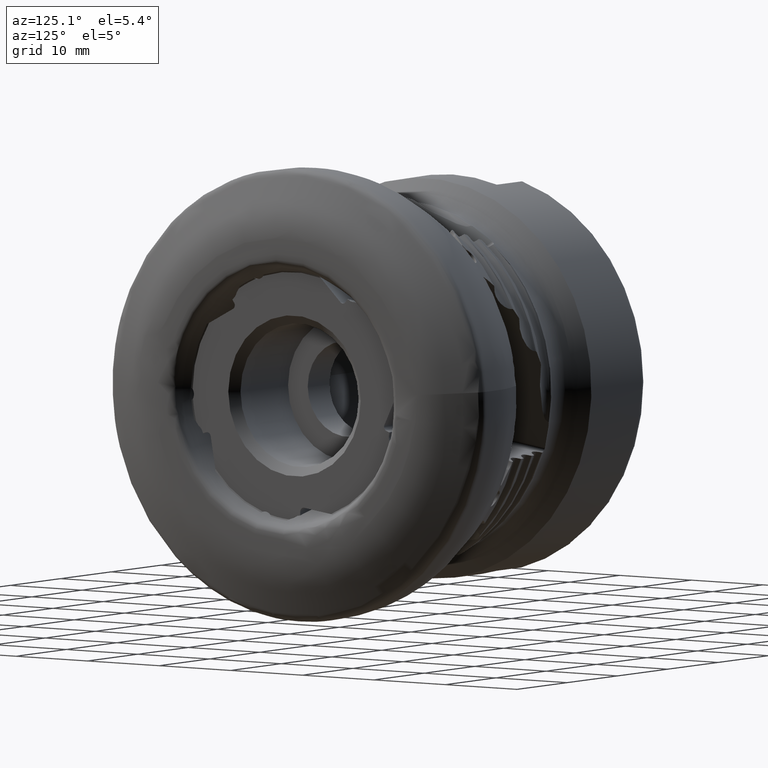
[diagram: clean part render]
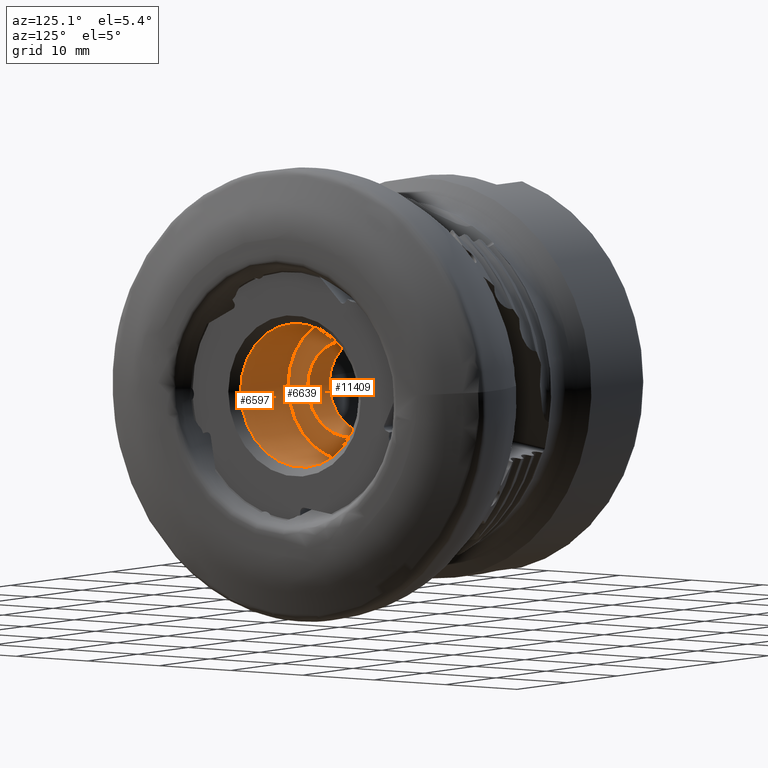
[diagram: same view with one multi-face feature highlighted, each face labeled with its STEP entity id]
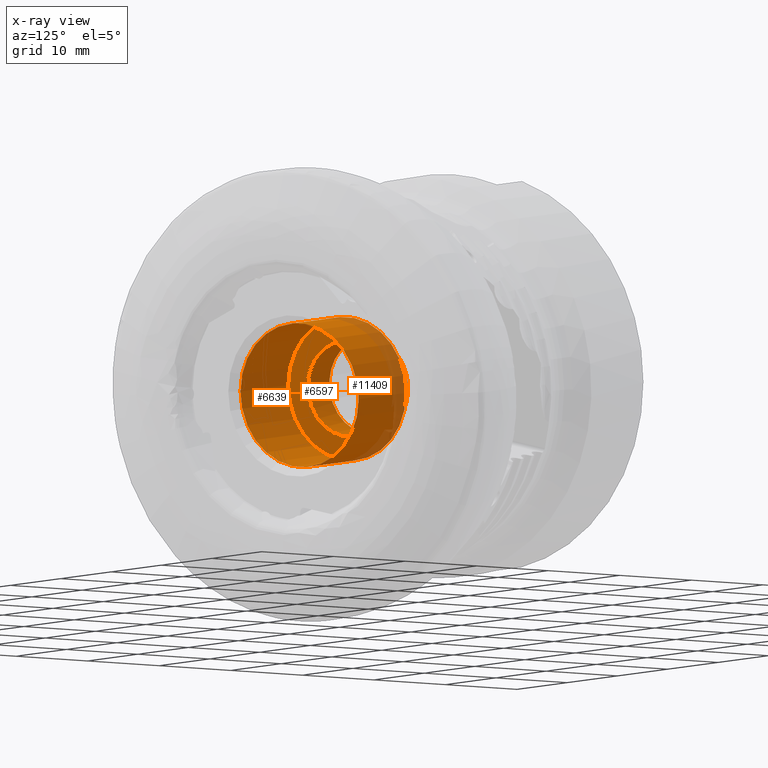
[diagram: x-ray of the same camera — body ghosted, the whole feature saturated]
A machine part, auxiliary view. The highlighted faces form ONE feature: a stepped (counterbored) hole: 2 coaxial cylindrical walls of radii 5.5 -> 8.25 mm joined by 1 annular planar shoulder face(s). The faces share edges in the B-rep.
The next image is the same camera in x-ray: the body ghosted and the whole hole feature saturated, so the bore chain is visible through the body.
Their STEP definitions:
[1] entity #6597 (Cylinder):
#273 = DIRECTION ( 'NONE',  ( 0.0000000000000000000, 1.000000000000000000, 0.0000000000000000000 ) ) ;
#1354 = CARTESIAN_POINT ( 'NONE',  ( 0.3947408229605479100, 4.834180853314269900E-017, 0.0000000000000000000 ) ) ;
#1958 = EDGE_LOOP ( 'NONE', ( #6215 ) ) ;
#1983 = CYLINDRICAL_SURFACE ( 'NONE', #10502, 8.250000000000000000 ) ;
#2250 = EDGE_CURVE ( 'NONE', #12569, #12569, #5651, .T. ) ;
#4002 = CIRCLE ( 'NONE', #12732, 8.249999999999998200 ) ;
#4101 = VERTEX_POINT ( 'NONE', #13147 ) ;
#4486 = ORIENTED_EDGE ( 'NONE', *, *, #2250, .T. ) ;
#4641 = CARTESIAN_POINT ( 'NONE',  ( -2.155259177039455600, 8.250000000000000000, 0.0000000000000000000 ) ) ;
#4694 = EDGE_LOOP ( 'NONE', ( #4486 ) ) ;
#5136 = FACE_OUTER_BOUND ( 'NONE', #1958, .T. ) ;
#5651 = CIRCLE ( 'NONE', #7156, 8.250000000000000000 ) ;
#6065 = CARTESIAN_POINT ( 'NONE',  ( -2.155259177039455600, 4.531869664882866300E-017, 0.0000000000000000000 ) ) ;
#6086 = CARTESIAN_POINT ( 'NONE',  ( -11.60525917703945500, 3.411539966578253300E-017, 0.0000000000000000000 ) ) ;
#6215 = ORIENTED_EDGE ( 'NONE', *, *, #7433, .F. ) ;
#6597 = ADVANCED_FACE ( 'NONE', ( #5136, #10537 ), #1983, .F. ) ;
#6709 = DIRECTION ( 'NONE',  ( 1.000000000000000000, 1.185534072280014000E-018, -0.0000000000000000000 ) ) ;
#7156 = AXIS2_PLACEMENT_3D ( 'NONE', #6065, #13523, #7158 ) ;
#7158 = DIRECTION ( 'NONE',  ( 0.0000000000000000000, 1.000000000000000000, 0.0000000000000000000 ) ) ;
#7192 = DIRECTION ( 'NONE',  ( 0.0000000000000000000, 1.000000000000000000, 0.0000000000000000000 ) ) ;
#7433 = EDGE_CURVE ( 'NONE', #4101, #4101, #4002, .T. ) ;
#10502 = AXIS2_PLACEMENT_3D ( 'NONE', #1354, #6709, #273 ) ;
#10537 = FACE_OUTER_BOUND ( 'NONE', #4694, .T. ) ;
#12569 = VERTEX_POINT ( 'NONE', #4641 ) ;
#12732 = AXIS2_PLACEMENT_3D ( 'NONE', #6086, #13545, #7192 ) ;
#13147 = CARTESIAN_POINT ( 'NONE',  ( -11.60525917703945500, 8.249999999999998200, 0.0000000000000000000 ) ) ;
#13523 = DIRECTION ( 'NONE',  ( 1.000000000000000000, 1.185534072280014000E-018, -0.0000000000000000000 ) ) ;
#13545 = DIRECTION ( 'NONE',  ( 1.000000000000000000, 1.185534072280014000E-018, -0.0000000000000000000 ) ) ;
[2] entity #11409 (Cylinder):
#422 = CARTESIAN_POINT ( 'NONE',  ( -15.90525917703945800, 5.499999999999997300, 0.0000000000000000000 ) ) ;
#460 = CARTESIAN_POINT ( 'NONE',  ( -11.60525917703945500, 5.499999999999998200, 0.0000000000000000000 ) ) ;
#602 = DIRECTION ( 'NONE',  ( 0.0000000000000000000, 1.000000000000000000, 0.0000000000000000000 ) ) ;
#634 = CYLINDRICAL_SURFACE ( 'NONE', #7364, 5.499999999999998200 ) ;
#1583 = DIRECTION ( 'NONE',  ( 0.0000000000000000000, 1.000000000000000000, 0.0000000000000000000 ) ) ;
#1603 = VERTEX_POINT ( 'NONE', #422 ) ;
#2100 = EDGE_CURVE ( 'NONE', #1603, #1603, #6311, .T. ) ;
#5246 = CIRCLE ( 'NONE', #8009, 5.499999999999998200 ) ;
#5577 = CARTESIAN_POINT ( 'NONE',  ( -11.60525917703945500, 3.411539966578253300E-017, 0.0000000000000000000 ) ) ;
#6030 = ORIENTED_EDGE ( 'NONE', *, *, #9819, .T. ) ;
#6311 = CIRCLE ( 'NONE', #13102, 5.499999999999997300 ) ;
#6656 = DIRECTION ( 'NONE',  ( 0.0000000000000000000, 1.000000000000000000, 0.0000000000000000000 ) ) ;
#6908 = DIRECTION ( 'NONE',  ( 1.000000000000000000, 1.185534072280014000E-018, -0.0000000000000000000 ) ) ;
#7364 = AXIS2_PLACEMENT_3D ( 'NONE', #9066, #11187, #1583 ) ;
#8009 = AXIS2_PLACEMENT_3D ( 'NONE', #5577, #13035, #6656 ) ;
#9066 = CARTESIAN_POINT ( 'NONE',  ( 0.3947408229605479100, 4.834180853314269900E-017, 0.0000000000000000000 ) ) ;
#9137 = FACE_OUTER_BOUND ( 'NONE', #9248, .T. ) ;
#9248 = EDGE_LOOP ( 'NONE', ( #10743 ) ) ;
#9380 = EDGE_LOOP ( 'NONE', ( #6030 ) ) ;
#9819 = EDGE_CURVE ( 'NONE', #12254, #12254, #5246, .T. ) ;
#10743 = ORIENTED_EDGE ( 'NONE', *, *, #2100, .F. ) ;
#11187 = DIRECTION ( 'NONE',  ( 1.000000000000000000, 1.185534072280014000E-018, -0.0000000000000000000 ) ) ;
#11409 = ADVANCED_FACE ( 'NONE', ( #9137, #12251 ), #634, .F. ) ;
#12251 = FACE_OUTER_BOUND ( 'NONE', #9380, .T. ) ;
#12254 = VERTEX_POINT ( 'NONE', #460 ) ;
#13035 = DIRECTION ( 'NONE',  ( 1.000000000000000000, 1.185534072280014000E-018, -0.0000000000000000000 ) ) ;
#13102 = AXIS2_PLACEMENT_3D ( 'NONE', #13281, #6908, #602 ) ;
#13281 = CARTESIAN_POINT ( 'NONE',  ( -15.90525917703945800, 2.901760315497846600E-017, 0.0000000000000000000 ) ) ;
[3] entity #6639 (Plane):
#453 = DIRECTION ( 'NONE',  ( -1.000000000000000000, -1.185534072280014000E-018, 0.0000000000000000000 ) ) ;
#460 = CARTESIAN_POINT ( 'NONE',  ( -11.60525917703945500, 5.499999999999998200, 0.0000000000000000000 ) ) ;
#4002 = CIRCLE ( 'NONE', #12732, 8.249999999999998200 ) ;
#4101 = VERTEX_POINT ( 'NONE', #13147 ) ;
#4810 = FACE_BOUND ( 'NONE', #9511, .T. ) ;
#5246 = CIRCLE ( 'NONE', #8009, 5.499999999999998200 ) ;
#5577 = CARTESIAN_POINT ( 'NONE',  ( -11.60525917703945500, 3.411539966578253300E-017, 0.0000000000000000000 ) ) ;
#6086 = CARTESIAN_POINT ( 'NONE',  ( -11.60525917703945500, 3.411539966578253300E-017, 0.0000000000000000000 ) ) ;
#6639 = ADVANCED_FACE ( 'NONE', ( #4810, #7643 ), #6749, .F. ) ;
#6656 = DIRECTION ( 'NONE',  ( 0.0000000000000000000, 1.000000000000000000, 0.0000000000000000000 ) ) ;
#6749 = PLANE ( 'NONE',  #11198 ) ;
#7192 = DIRECTION ( 'NONE',  ( 0.0000000000000000000, 1.000000000000000000, 0.0000000000000000000 ) ) ;
#7433 = EDGE_CURVE ( 'NONE', #4101, #4101, #4002, .T. ) ;
#7643 = FACE_OUTER_BOUND ( 'NONE', #13118, .T. ) ;
#7874 = DIRECTION ( 'NONE',  ( 1.185534072280014000E-018, -1.000000000000000000, 0.0000000000000000000 ) ) ;
#8009 = AXIS2_PLACEMENT_3D ( 'NONE', #5577, #13035, #6656 ) ;
#8406 = ORIENTED_EDGE ( 'NONE', *, *, #7433, .T. ) ;
#8472 = ORIENTED_EDGE ( 'NONE', *, *, #9819, .F. ) ;
#9511 = EDGE_LOOP ( 'NONE', ( #8472 ) ) ;
#9819 = EDGE_CURVE ( 'NONE', #12254, #12254, #5246, .T. ) ;
#10009 = CARTESIAN_POINT ( 'NONE',  ( -11.60525917703945500, 8.249999999999998200, 0.0000000000000000000 ) ) ;
#11198 = AXIS2_PLACEMENT_3D ( 'NONE', #10009, #453, #7874 ) ;
#12254 = VERTEX_POINT ( 'NONE', #460 ) ;
#12732 = AXIS2_PLACEMENT_3D ( 'NONE', #6086, #13545, #7192 ) ;
#13035 = DIRECTION ( 'NONE',  ( 1.000000000000000000, 1.185534072280014000E-018, -0.0000000000000000000 ) ) ;
#13118 = EDGE_LOOP ( 'NONE', ( #8406 ) ) ;
#13147 = CARTESIAN_POINT ( 'NONE',  ( -11.60525917703945500, 8.249999999999998200, 0.0000000000000000000 ) ) ;
#13545 = DIRECTION ( 'NONE',  ( 1.000000000000000000, 1.185534072280014000E-018, -0.0000000000000000000 ) ) ;